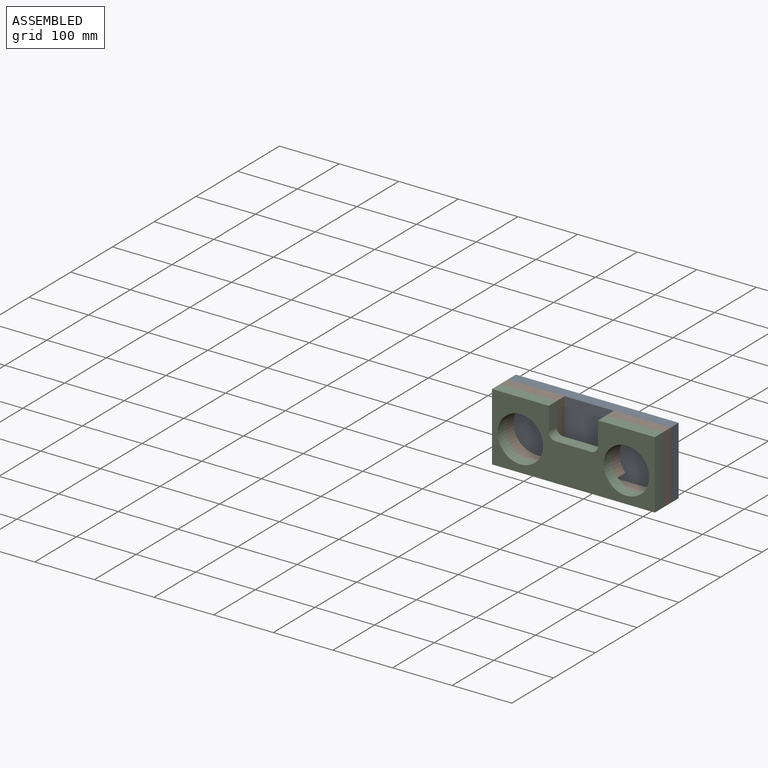
[diagram: assembled view]
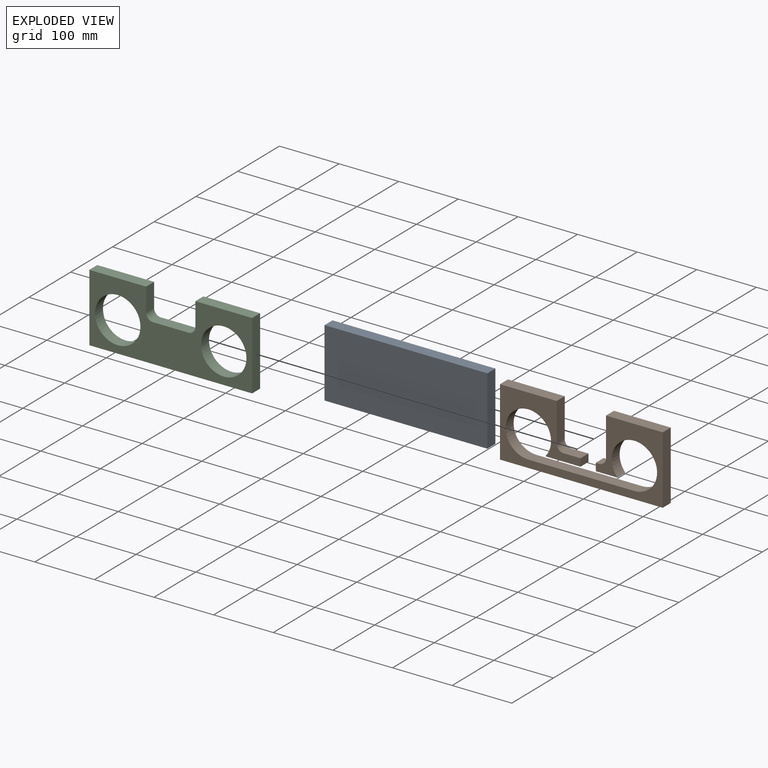
[diagram: exploded view]
GUIDED TOUR — MATED ASSEMBLY (Onshape document 009a5b0d713c1caff9c0ab8f, AutoMate assembly 009a5b0d713c1caff9c0ab8f_f45f7d38671a4d365aea298a_47d180833d17dc63df8f9604_default)

This assembly has 3 components, labeled P0..P2 below (a component is one placed occurrence of a part; the same part can appear more than once), held together by 3 mates. A mate is a constraint between two components; its type names the relative motion it leaves free:
  PARALLEL — keeps the two listed directions parallel.
Axis/direction vectors are unit vectors and 'through' points are millimeter coordinates, both in the assembly's world frame.

MATES
  1. PARALLEL "Parallel 2": P0 <-> P1, direction (1.000, 0.000, 0.000) through (211.33, -49.88, -49.95) mm
  2. PARALLEL "Parallel 1": P1 <-> P2, direction (1.000, 0.000, 0.000) through (211.33, -68.93, -49.95) mm
  3. PARALLEL "Parallel 3": P0 <-> P1, direction (0.000, 0.000, 1.000) through (-61.72, -49.88, 7.20) mm

ASSEMBLY ORDER
  1. P1 — the base component [order verified]
  2. P0 [order verified]
  3. P2 [order verified]
Order-tag legend:
  [order verified] — this step's position reverses a verified removal order: the component was checked to insert without passing through the ones already placed.

Of the 3 components, 3 carry the full construction recipe — the FeatureScript program that regenerates the part's solid from scratch; the rest are supplied as boundary geometry only.
Each toured component is shown spotlighted twice — in the assembled view, then in the exploded view, where a leader line traces a displaced component back to its assembled socket (saturated green if recipe-attached, orange if geometry-only; every other component desaturated gray) — followed by its recipe or geometry summary and the mates that hold it.
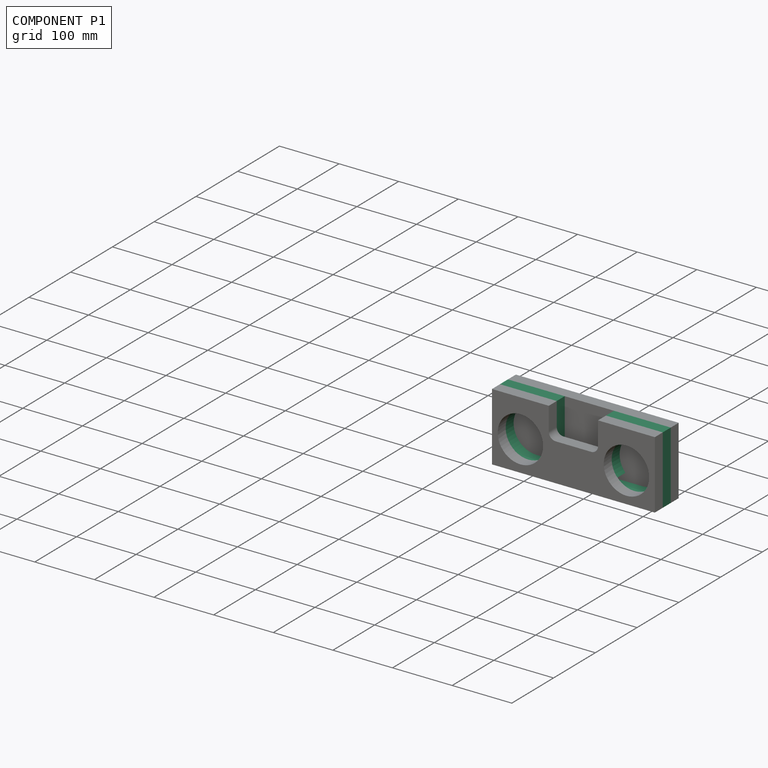
[diagram: component P1 — assembled]
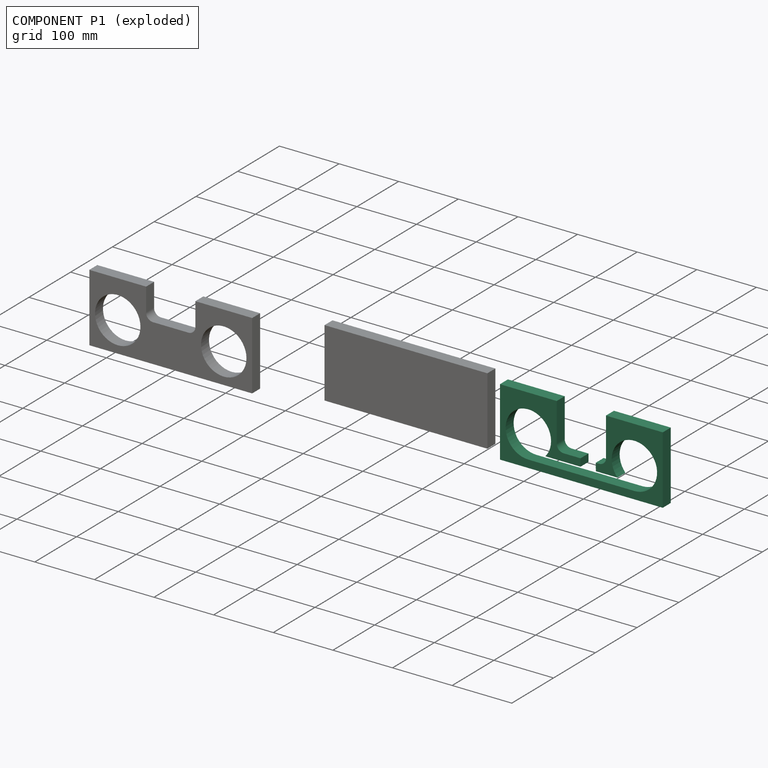
[diagram: component P1 — exploded]
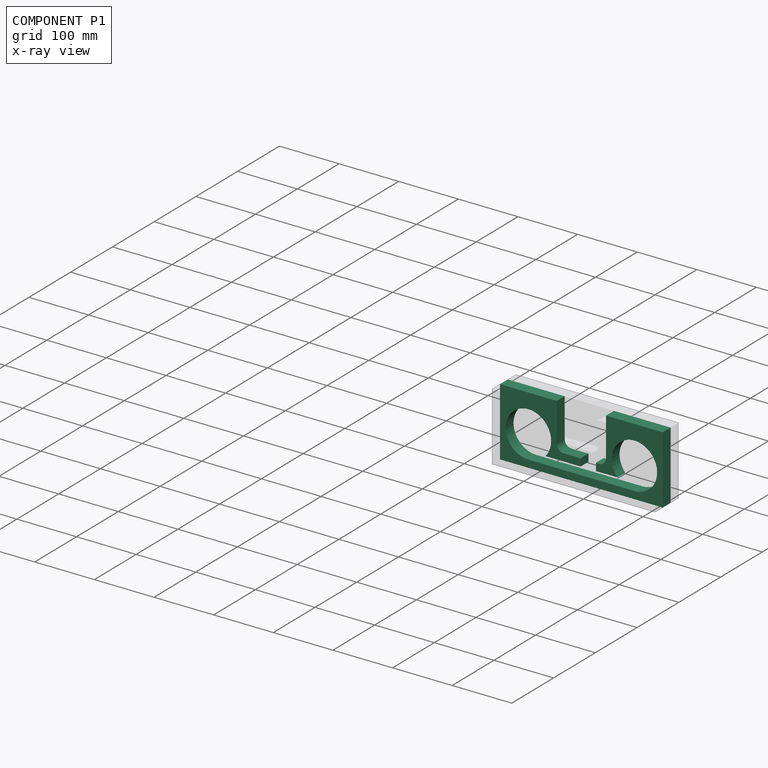
[diagram: component P1 — x-ray view]
COMPONENT P1 — recipe-attached (CADFS 00717767, mesh-verified: the recipe's output STEP matches this component's geometry to below the mesh-comparison resolution (tessellation chordal tolerance ~0.445 mm)).
Held by: PARALLEL mate "Parallel 2" to P0; PARALLEL mate "Parallel 1" to P2; PARALLEL mate "Parallel 3" to P0.
Construction recipe (FeatureScript — the CAD program that rebuilds this solid; sketch coordinates are in the units given by the * unit suffixes, e.g. mm):

FeatureScript 1511;
import(path : "onshape/std/geometry.fs", version : "1511.0");
import(path : "onshape/std/common.fs", version : "1511.0");
const mm = millimeter;
const VERTEX = EntityType.VERTEX;
const EDGE = EntityType.EDGE;
const FACE = EntityType.FACE;
const BODY = EntityType.BODY;
function v(x, y){return vector(x, y);}
function OD(order){return orderDisambiguation(order);}
function OSD(set){return originalSetDisambiguation(set);}
function TD(topology){return topologyDisambiguation(topology);}
function TDD(query){return trueDependencyDisambiguation(query);}
function sQuery(a, b, c) {return sketchEntityQuery(a, b, c);}

annotation { "Feature Type Name" : "Feature", "Feature Type Description" : "" }
export const myFeature = defineFeature(function(context is Context, id is Id, definition is map)
    precondition{}
    {
        {
            var Q0;
            Q0=qCreatedBy(makeId("Front.planeOp"),FACE);
            var sketch = newSketch(context, id + "F0", { "sketchPlane" : qUnion([Q0])});
            skLineSegment(sketch, "E0.bottom", {"start": v(0, 0) * mm, "end": v(273.05, 0) * mm});
            skLineSegment(sketch, "E0.top", {"start": v(0, 114.3) * mm, "end": v(273.05, 114.3) * mm});
            skLineSegment(sketch, "E0.left", {"start": v(0, 0) * mm, "end": v(0, 114.3) * mm});
            skLineSegment(sketch, "E0.right", {"start": v(273.05, 0) * mm, "end": v(273.05, 114.3) * mm});
            skSolve(sketch);
        }
        {
            var Q0;
            Q0=makeQuery(id+"F0.imprint","IMPRINT",FACE,{"disambiguationData":[TD([[makeQuery(id+"F0.imprint","IMPRINT",EDGE,{"derivedFrom":sQuery(id+"F0.wireOp",EDGE,"E0.bottom")}),1.0]])]});
            extrude(context, id + "F1", {"entities" : qUnion([Q0]), "depth" : 19.05 * mm, "offsetDistance" : 25.4 * mm});
        }
        {
            var Q0;
            Q0=makeQuery(id+"F1.opExtrude","CAP_FACE",FACE,{"disambiguationData":[OSD([sQuery(id+"F0.wireOp",EDGE,"E0.bottom"),sQuery(id+"F0.wireOp",EDGE,"E0.top"),sQuery(id+"F0.wireOp",EDGE,"E0.left"),sQuery(id+"F0.wireOp",EDGE,"E0.right")])],"isStart":false});
            var sketch = newSketch(context, id + "F2", { "sketchPlane" : qUnion([Q0])});
            skCircle(sketch, "E1", {"center": v(47.63, 50.8) * mm, "radius": 38.1 * mm});
            skCircle(sketch, "E2", {"center": v(225.43, 50.8) * mm, "radius": 38.1 * mm});
            skSolve(sketch);
        }
        {
            var Q0;
            Q0=makeQuery(id+"F2.imprint","IMPRINT",FACE,{"disambiguationData":[TD([[makeQuery(id+"F2.imprint","IMPRINT",EDGE,{"derivedFrom":sQuery(id+"F2.wireOp",EDGE,"E1")}),1.0]])]});
            var Q1;
            Q1=makeQuery(id+"F2.imprint","IMPRINT",FACE,{"disambiguationData":[TD([[makeQuery(id+"F2.imprint","IMPRINT",EDGE,{"derivedFrom":sQuery(id+"F2.wireOp",EDGE,"E2")}),1.0]])]});
            extrude(context, id + "F3", {"entities" : qUnion([Q0, Q1]), "operationType" : NewBodyOperationType.REMOVE, "oppositeDirection" : true, "depth" : 25.4 * mm, "offsetDistance" : 25.4 * mm});
        }
        {
            var Q0;
            Q0=makeQuery(id+"F1.opExtrude","CAP_FACE",FACE,{"disambiguationData":[OSD([sQuery(id+"F0.wireOp",EDGE,"E0.bottom"),sQuery(id+"F0.wireOp",EDGE,"E0.top"),sQuery(id+"F0.wireOp",EDGE,"E0.left"),sQuery(id+"F0.wireOp",EDGE,"E0.right")])],"isStart":false});
            var sketch = newSketch(context, id + "F4", { "sketchPlane" : qUnion([Q0])});
            skLineSegment(sketch, "E3", {"start": v(95.25, 114.3) * mm, "end": v(95.25, 49.53) * mm});
            skLineSegment(sketch, "E4", {"start": v(106.68, 38.1) * mm, "end": v(166.37, 38.1) * mm});
            skLineSegment(sketch, "E5", {"start": v(177.8, 49.53) * mm, "end": v(177.8, 114.3) * mm});
            skLineSegment(sketch, "E6", {"start": v(95.25, 114.3) * mm, "end": v(177.8, 114.3) * mm});
            skPoint(sketch, "E7.visualSharp", {"position": v(95.25, 38.1) * mm});
            skArc(sketch, "E7.filletArc", {"start": v(95.25, 49.53) * mm, "mid": v(98.6, 41.45) * mm, "end": v(106.68, 38.1) * mm});
            skPoint(sketch, "E8.visualSharp", {"position": v(177.8, 38.1) * mm});
            skArc(sketch, "E8.filletArc", {"start": v(166.37, 38.1) * mm, "mid": v(174.45, 41.45) * mm, "end": v(177.8, 49.53) * mm});
            skSolve(sketch);
        }
        {
            var Q0;
            Q0=makeQuery(id+"F4.imprint","IMPRINT",FACE,{"disambiguationData":[TD([[makeQuery(id+"F4.imprint","IMPRINT",EDGE,{"derivedFrom":sQuery(id+"F4.wireOp",EDGE,"E3")}),1.0]])]});
            extrude(context, id + "F5", {"entities" : qUnion([Q0]), "operationType" : NewBodyOperationType.REMOVE, "oppositeDirection" : true, "depth" : 25.4 * mm, "offsetDistance" : 25.4 * mm});
        }
        {
            var Q0;
            Q0=makeQuery(id+"F1.opExtrude","CAP_FACE",FACE,{"disambiguationData":[OSD([sQuery(id+"F0.wireOp",EDGE,"E0.bottom"),sQuery(id+"F0.wireOp",EDGE,"E0.top"),sQuery(id+"F0.wireOp",EDGE,"E0.left"),sQuery(id+"F0.wireOp",EDGE,"E0.right")])],"isStart":false});
            var sketch = newSketch(context, id + "F6", { "sketchPlane" : qUnion([Q0])});
            skLineSegment(sketch, "E9", {"start": v(160.55, 38.1) * mm, "end": v(135.15, 38.1) * mm});
            skLineSegment(sketch, "E10", {"start": v(135.15, 38.1) * mm, "end": v(135.15, 25.4) * mm});
            skLineSegment(sketch, "E11", {"start": v(135.15, 25.4) * mm, "end": v(76.02, 25.4) * mm});
            skLineSegment(sketch, "E12", {"start": v(76.02, 25.4) * mm, "end": v(47.63, 12.7) * mm});
            skLineSegment(sketch, "E13", {"start": v(47.63, 12.7) * mm, "end": v(225.43, 12.7) * mm});
            skLineSegment(sketch, "E14", {"start": v(225.43, 12.7) * mm, "end": v(197.03, 25.4) * mm});
            skLineSegment(sketch, "E15", {"start": v(197.03, 25.4) * mm, "end": v(160.86, 25.4) * mm});
            skLineSegment(sketch, "E16", {"start": v(160.86, 25.4) * mm, "end": v(160.55, 38.1) * mm});
            skSolve(sketch);
        }
        {
            var Q0;
            Q0=makeQuery(id+"F6.imprint","IMPRINT",FACE,{"disambiguationData":[TD([[makeQuery(id+"F6.imprint","IMPRINT",EDGE,{"derivedFrom":sQuery(id+"F6.wireOp",EDGE,"E9")}),-1.0]])]});
            extrude(context, id + "F7", {"entities" : qUnion([Q0]), "operationType" : NewBodyOperationType.REMOVE, "oppositeDirection" : true, "depth" : 25.4 * mm, "offsetDistance" : 25.4 * mm});
        }
    });
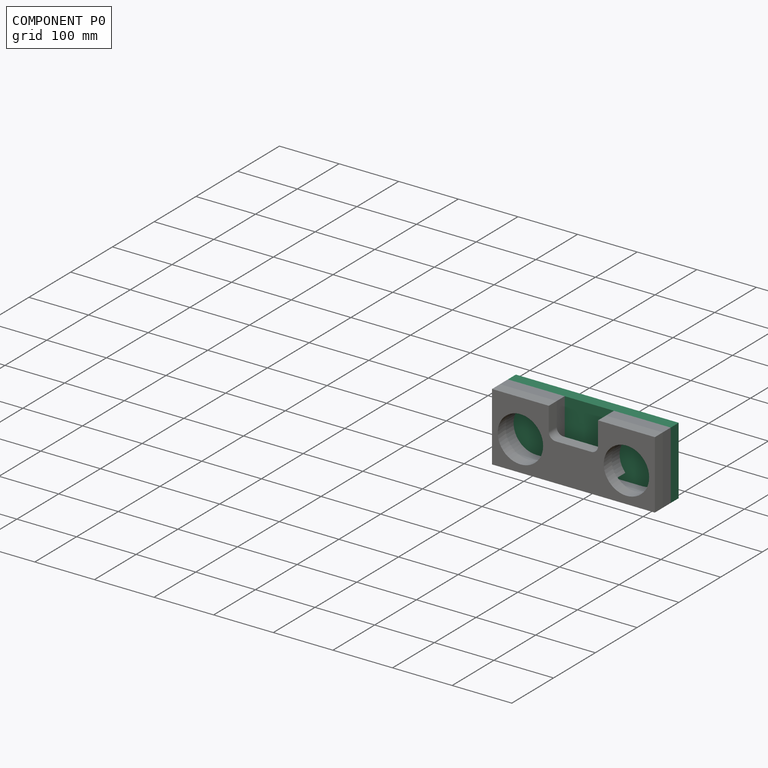
[diagram: component P0 — assembled]
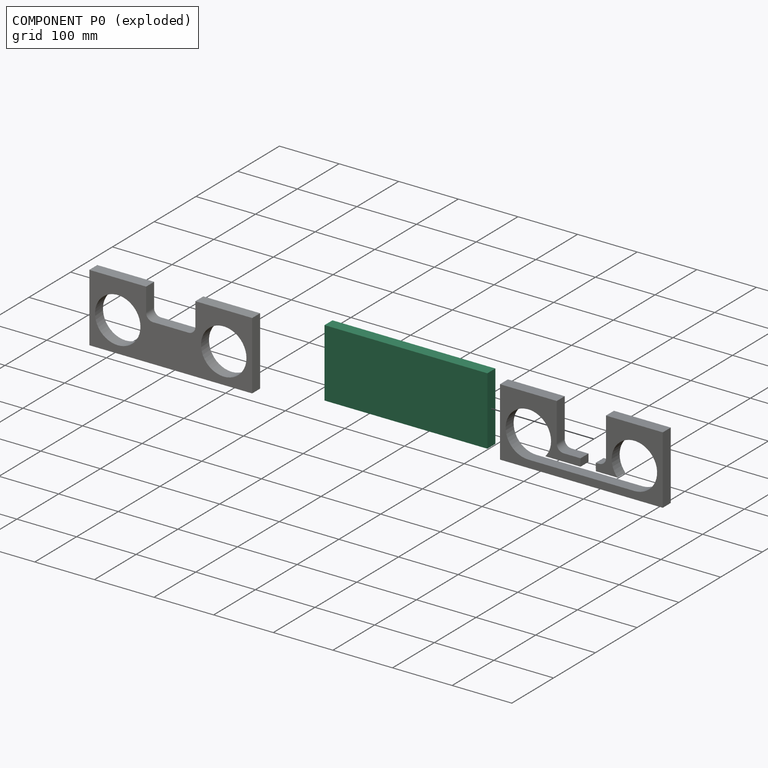
[diagram: component P0 — exploded]
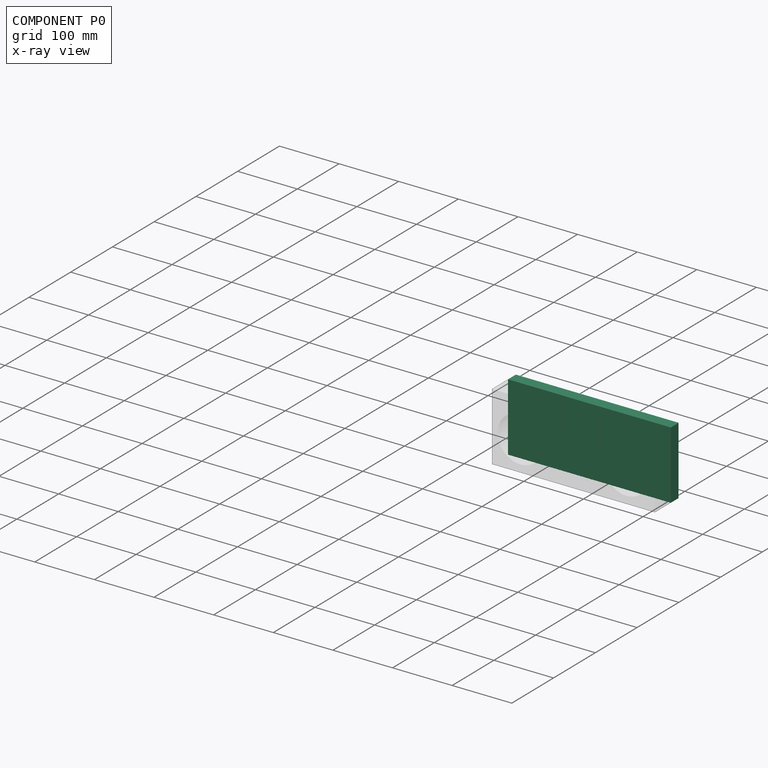
[diagram: component P0 — x-ray view]
COMPONENT P0 — recipe-attached (CADFS 00715214, mesh-verified: the recipe's output STEP matches this component's geometry to below the mesh-comparison resolution (tessellation chordal tolerance ~0.445 mm)).
Held by: PARALLEL mate "Parallel 2" to P1; PARALLEL mate "Parallel 3" to P1.
Construction recipe (FeatureScript — the CAD program that rebuilds this solid; sketch coordinates are in the units given by the * unit suffixes, e.g. mm):

FeatureScript 1511;
import(path : "onshape/std/geometry.fs", version : "1511.0");
import(path : "onshape/std/common.fs", version : "1511.0");
const mm = millimeter;
const VERTEX = EntityType.VERTEX;
const EDGE = EntityType.EDGE;
const FACE = EntityType.FACE;
const BODY = EntityType.BODY;
function v(x, y){return vector(x, y);}
function OD(order){return orderDisambiguation(order);}
function OSD(set){return originalSetDisambiguation(set);}
function TD(topology){return topologyDisambiguation(topology);}
function TDD(query){return trueDependencyDisambiguation(query);}
function sQuery(a, b, c) {return sketchEntityQuery(a, b, c);}

annotation { "Feature Type Name" : "Feature", "Feature Type Description" : "" }
export const myFeature = defineFeature(function(context is Context, id is Id, definition is map)
    precondition{}
    {
        {
            var Q0;
            Q0=qCreatedBy(makeId("Front.planeOp"),FACE);
            var sketch = newSketch(context, id + "F0", { "sketchPlane" : qUnion([Q0])});
            skLineSegment(sketch, "E0.bottom", {"start": v(0, 0) * mm, "end": v(273.05, 0) * mm});
            skLineSegment(sketch, "E0.top", {"start": v(0, 114.3) * mm, "end": v(273.05, 114.3) * mm});
            skLineSegment(sketch, "E0.left", {"start": v(0, 0) * mm, "end": v(0, 114.3) * mm});
            skLineSegment(sketch, "E0.right", {"start": v(273.05, 0) * mm, "end": v(273.05, 114.3) * mm});
            skSolve(sketch);
        }
        {
            var Q0;
            Q0 = qSketchRegion(id + "F0", true);
            extrude(context, id + "F1", {"entities" : qUnion([Q0]), "depth" : 19.05 * mm, "offsetDistance" : 25.4 * mm});
        }
    });
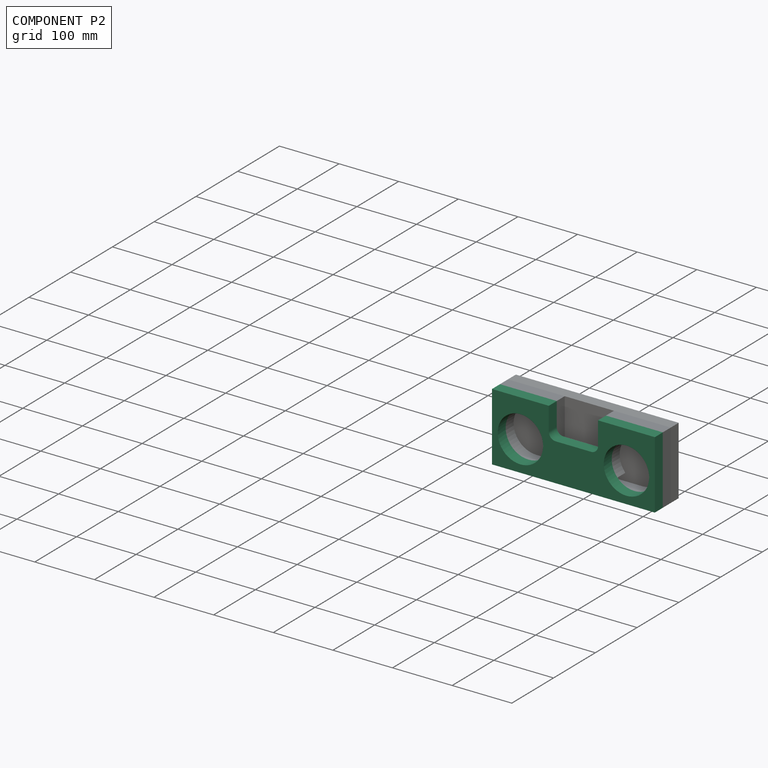
[diagram: component P2 — assembled]
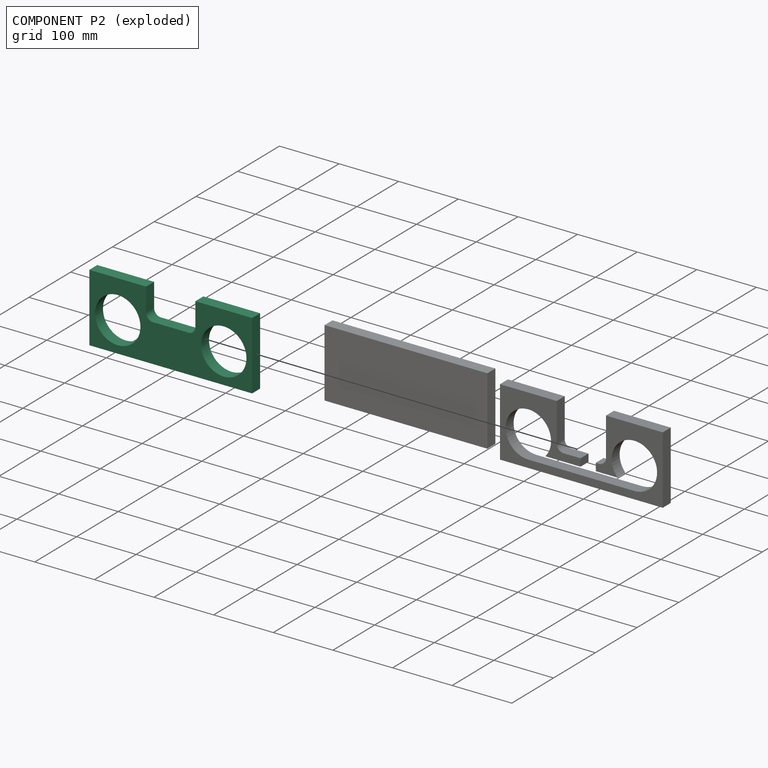
[diagram: component P2 — exploded]
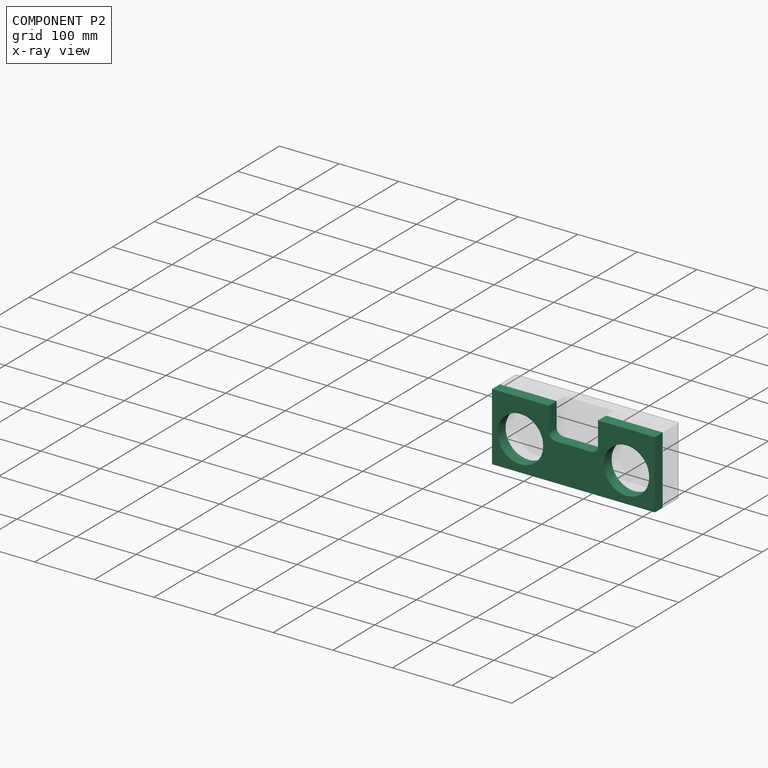
[diagram: component P2 — x-ray view]
COMPONENT P2 — recipe-attached (CADFS 00717830, mesh-verified: the recipe's output STEP matches this component's geometry to below the mesh-comparison resolution (tessellation chordal tolerance ~0.445 mm)).
Held by: PARALLEL mate "Parallel 1" to P1.
Construction recipe (FeatureScript — the CAD program that rebuilds this solid; sketch coordinates are in the units given by the * unit suffixes, e.g. mm):

FeatureScript 1511;
import(path : "onshape/std/geometry.fs", version : "1511.0");
import(path : "onshape/std/common.fs", version : "1511.0");
const mm = millimeter;
const VERTEX = EntityType.VERTEX;
const EDGE = EntityType.EDGE;
const FACE = EntityType.FACE;
const BODY = EntityType.BODY;
function v(x, y){return vector(x, y);}
function OD(order){return orderDisambiguation(order);}
function OSD(set){return originalSetDisambiguation(set);}
function TD(topology){return topologyDisambiguation(topology);}
function TDD(query){return trueDependencyDisambiguation(query);}
function sQuery(a, b, c) {return sketchEntityQuery(a, b, c);}

annotation { "Feature Type Name" : "Feature", "Feature Type Description" : "" }
export const myFeature = defineFeature(function(context is Context, id is Id, definition is map)
    precondition{}
    {
        {
            var Q0;
            Q0=qCreatedBy(makeId("Front.planeOp"),FACE);
            var sketch = newSketch(context, id + "F0", { "sketchPlane" : qUnion([Q0])});
            skLineSegment(sketch, "E0.bottom", {"start": v(0, 0) * mm, "end": v(273.05, 0) * mm});
            skLineSegment(sketch, "E0.top", {"start": v(0, 114.3) * mm, "end": v(273.05, 114.3) * mm});
            skLineSegment(sketch, "E0.left", {"start": v(0, 0) * mm, "end": v(0, 114.3) * mm});
            skLineSegment(sketch, "E0.right", {"start": v(273.05, 0) * mm, "end": v(273.05, 114.3) * mm});
            skSolve(sketch);
        }
        {
            var Q0;
            Q0=makeQuery(id+"F0.imprint","IMPRINT",FACE,{"disambiguationData":[TD([[makeQuery(id+"F0.imprint","IMPRINT",EDGE,{"derivedFrom":sQuery(id+"F0.wireOp",EDGE,"E0.bottom")}),1.0]])]});
            extrude(context, id + "F1", {"entities" : qUnion([Q0]), "depth" : 19.05 * mm, "offsetDistance" : 25.4 * mm});
        }
        {
            var Q0;
            Q0=makeQuery(id+"F1.opExtrude","CAP_FACE",FACE,{"disambiguationData":[OSD([sQuery(id+"F0.wireOp",EDGE,"E0.bottom"),sQuery(id+"F0.wireOp",EDGE,"E0.top"),sQuery(id+"F0.wireOp",EDGE,"E0.left"),sQuery(id+"F0.wireOp",EDGE,"E0.right")])],"isStart":false});
            var sketch = newSketch(context, id + "F2", { "sketchPlane" : qUnion([Q0])});
            skCircle(sketch, "E1", {"center": v(47.63, 50.8) * mm, "radius": 38.1 * mm});
            skCircle(sketch, "E2", {"center": v(225.43, 50.8) * mm, "radius": 38.1 * mm});
            skSolve(sketch);
        }
        {
            var Q0;
            Q0 = qSketchRegion(id + "F2", true);
            extrude(context, id + "F3", {"entities" : qUnion([Q0]), "operationType" : NewBodyOperationType.REMOVE, "oppositeDirection" : true, "depth" : 25.4 * mm, "offsetDistance" : 25.4 * mm});
        }
        {
            var Q0;
            Q0=makeQuery(id+"F1.opExtrude","CAP_FACE",FACE,{"disambiguationData":[OSD([sQuery(id+"F0.wireOp",EDGE,"E0.bottom"),sQuery(id+"F0.wireOp",EDGE,"E0.top"),sQuery(id+"F0.wireOp",EDGE,"E0.left"),sQuery(id+"F0.wireOp",EDGE,"E0.right")])],"isStart":false});
            var sketch = newSketch(context, id + "F4", { "sketchPlane" : qUnion([Q0])});
            skLineSegment(sketch, "E3", {"start": v(95.25, 114.3) * mm, "end": v(95.25, 74.93) * mm});
            skLineSegment(sketch, "E4", {"start": v(106.68, 63.5) * mm, "end": v(166.37, 63.5) * mm});
            skLineSegment(sketch, "E5", {"start": v(177.8, 74.93) * mm, "end": v(177.8, 114.3) * mm});
            skLineSegment(sketch, "E6", {"start": v(177.8, 114.3) * mm, "end": v(95.25, 114.3) * mm});
            skPoint(sketch, "E7.visualSharp", {"position": v(95.25, 63.5) * mm});
            skArc(sketch, "E7.filletArc", {"start": v(95.25, 74.93) * mm, "mid": v(98.6, 66.85) * mm, "end": v(106.68, 63.5) * mm});
            skPoint(sketch, "E8.visualSharp", {"position": v(177.8, 63.5) * mm});
            skArc(sketch, "E8.filletArc", {"start": v(166.37, 63.5) * mm, "mid": v(174.45, 66.85) * mm, "end": v(177.8, 74.93) * mm});
            skSolve(sketch);
        }
        {
            var Q0;
            Q0=makeQuery(id+"F4.imprint","IMPRINT",FACE,{"disambiguationData":[TD([[makeQuery(id+"F4.imprint","IMPRINT",EDGE,{"derivedFrom":sQuery(id+"F4.wireOp",EDGE,"E3")}),1.0]])]});
            extrude(context, id + "F5", {"entities" : qUnion([Q0]), "operationType" : NewBodyOperationType.REMOVE, "oppositeDirection" : true, "depth" : 25.4 * mm, "offsetDistance" : 25.4 * mm});
        }
    });
PROVENANCE & LICENSES
Assembly (occurrences, transforms, mates, per-part STEP geometry): AutoMate dataset, Zenodo record 7776208, CC0.
Construction recipes: CADFS (HuggingFace VladPyatov/CADFS, CC-BY-4.0, layered over the ABC dataset), FeatureScript reconstruction programs keyed by ABC model id.
Join: ABC meta listings map ABC model id -> Onshape documentId; within a shared document, parts are matched by geometric signature (bounding-box dims + volume at 0.1% relative tolerance, exact B-rep face/solid counts).
Verification: 3 of this assembly's 3 components carry a recipe attachment, and every attachment is mesh-verified: the CADFS STEP and the AutoMate member STEP were compared as meshes in their shared local frame (symmetric sampled-point-to-mesh distance); worst across the 3 attachments: below the mesh-comparison resolution (tessellation chordal tolerance ~0.445 mm) on a 297 mm part.
Renders: orthographic iso camera (az 35 / el 25); the floor grid conveys scale (grid pitch printed in each image; no ruler). In the exploded view each component is displaced by its stored offset vector: the offsets alone carry the explosion direction (mate normal/axis signs are not orientation cues and do not encode it), and separation distances are assigned per mate-chain, not proportionally to assembly-order depth.
